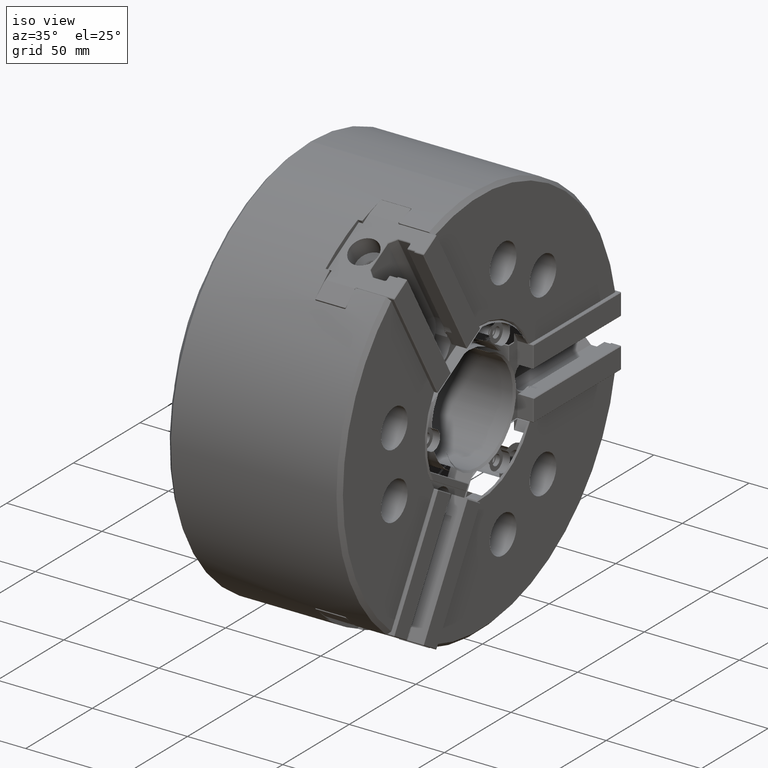
[diagram: clean part render]
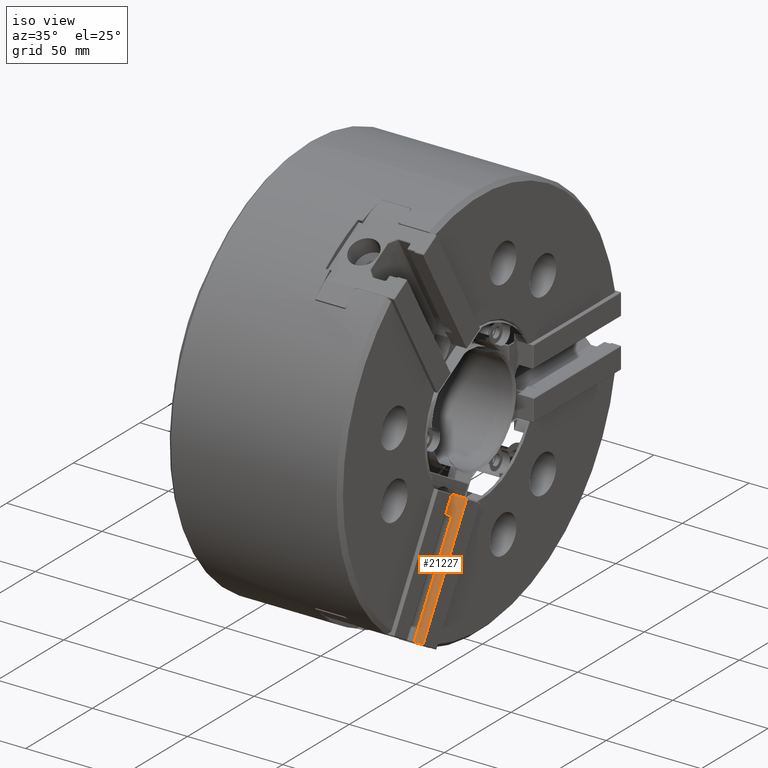
[diagram: same view with one face highlighted and labeled with its STEP entity id]
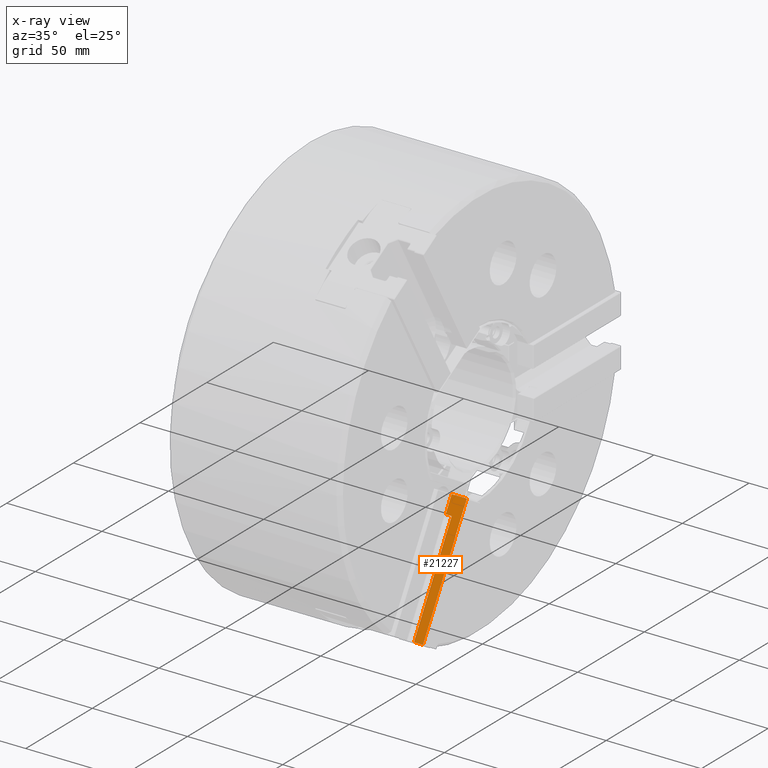
[diagram: x-ray of the same camera — body ghosted, the highlighted face saturated]
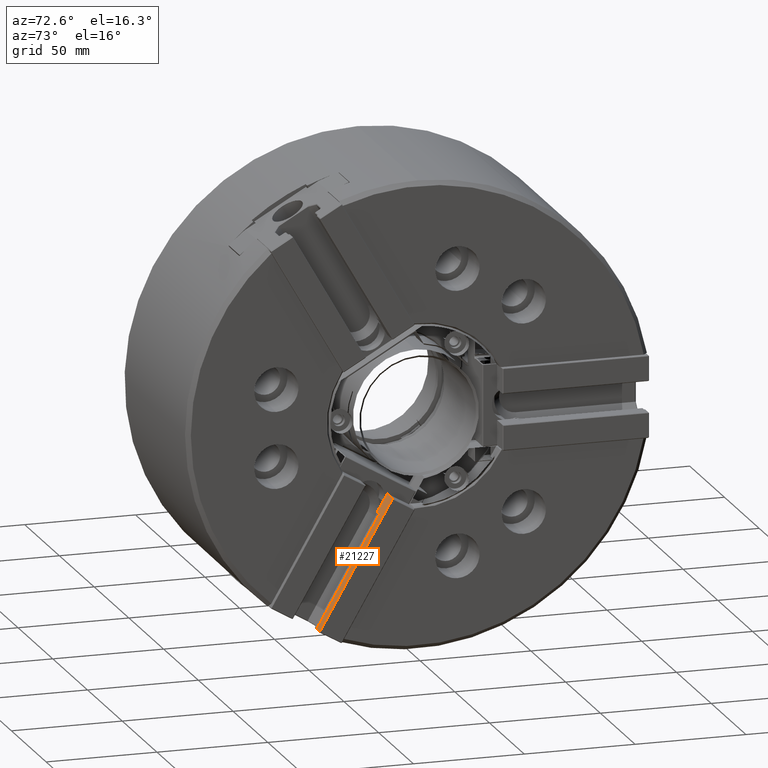
[diagram: same view with one face highlighted and labeled with its STEP entity id]
A machine part, iso view. The second image highlights one B-rep face of the part: STEP entity #21227.
The next image is the same camera in x-ray: the body ghosted, the highlighted face saturated — about 0% of this face is hidden behind the body in this view.
A second angle (auxiliary view) of the same face is appended — the face is thin or edge-on in the first view.
In plain terms, the highlighted planar face has unit normal (-0, 0.866, -0.5).
Its self-contained STEP definition (entity closure, byte-faithful):
#1751=LINE('',#34813,#3849);
#1769=LINE('',#34887,#3867);
#1773=LINE('',#34900,#3871);
#1774=LINE('',#34903,#3872);
#1775=LINE('',#34905,#3873);
#1776=LINE('',#34906,#3874);
#1777=LINE('',#34908,#3875);
#1778=LINE('',#34909,#3876);
#3849=VECTOR('',#27625,1000.);
#3867=VECTOR('',#27689,1000.);
#3871=VECTOR('',#27701,1000.);
#3872=VECTOR('',#27702,1000.);
#3873=VECTOR('',#27703,1000.);
#3874=VECTOR('',#27704,1000.);
#3875=VECTOR('',#27705,1000.);
#3876=VECTOR('',#27706,1000.);
#5125=PLANE('',#23046);
#9310=ORIENTED_EDGE('',*,*,#13695,.T.);
#9311=ORIENTED_EDGE('',*,*,#13696,.T.);
#9312=ORIENTED_EDGE('',*,*,#13697,.T.);
#9313=ORIENTED_EDGE('',*,*,#13689,.T.);
#9314=ORIENTED_EDGE('',*,*,#13698,.T.);
#9315=ORIENTED_EDGE('',*,*,#13699,.T.);
#9316=ORIENTED_EDGE('',*,*,#13655,.F.);
#9317=ORIENTED_EDGE('',*,*,#13700,.F.);
#13655=EDGE_CURVE('',#16084,#16085,#1751,.T.);
#13689=EDGE_CURVE('',#16118,#16117,#1769,.T.);
#13695=EDGE_CURVE('',#16123,#16124,#1773,.T.);
#13696=EDGE_CURVE('',#16124,#16125,#1774,.T.);
#13697=EDGE_CURVE('',#16125,#16118,#1775,.T.);
#13698=EDGE_CURVE('',#16117,#16126,#1776,.T.);
#13699=EDGE_CURVE('',#16126,#16085,#1777,.T.);
#13700=EDGE_CURVE('',#16123,#16084,#1778,.T.);
#16084=VERTEX_POINT('',#34812);
#16085=VERTEX_POINT('',#34814);
#16117=VERTEX_POINT('',#34886);
#16118=VERTEX_POINT('',#34888);
#16123=VERTEX_POINT('',#34901);
#16124=VERTEX_POINT('',#34902);
#16125=VERTEX_POINT('',#34904);
#16126=VERTEX_POINT('',#34907);
#18293=EDGE_LOOP('',(#9310,#9311,#9312,#9313,#9314,#9315,#9316,#9317));
#19731=FACE_BOUND('',#18293,.T.);
#21227=ADVANCED_FACE('',(#19731),#5125,.F.);
#23046=AXIS2_PLACEMENT_3D('',#34899,#27699,#27700);
#27625=DIRECTION('',(-1.,-7.24206233135188E-17,4.26993070010448E-16));
#27689=DIRECTION('',(-3.33576534212196E-16,-0.499999999999999,-0.866025403784439));
#27699=DIRECTION('',(-3.22524454371321E-15,0.866025403784439,-0.499999999999999));
#27700=DIRECTION('',(-1.,-2.6263554411667E-15,1.90150802459074E-15));
#27701=DIRECTION('',(1.,2.6263554411667E-15,-1.90150802459074E-15));
#27702=DIRECTION('',(3.33576534212196E-16,0.499999999999999,0.866025403784439));
#27703=DIRECTION('',(-1.,-4.85450022355615E-16,-2.88394834150105E-16));
#27704=DIRECTION('',(-3.33576534212196E-16,-0.499999999999999,-0.866025403784439));
#27705=DIRECTION('',(-3.33576534212196E-16,-0.499999999999999,-0.866025403784439));
#27706=DIRECTION('',(3.33576534212196E-16,0.499999999999999,0.866025403784439));
#34812=CARTESIAN_POINT('',(-4.22623456790121,-17.0204754411876,-43.4803282331153));
#34813=CARTESIAN_POINT('',(-99.1911851997444,-17.0204754411876,-43.4803282331152));
#34814=CARTESIAN_POINT('',(-7.42623456790121,-17.0204754411876,-43.4803282331153));
#34886=CARTESIAN_POINT('',(-7.42623456790121,-13.7454754411876,-37.8078618383272));
#34887=CARTESIAN_POINT('',(-7.42623456790121,-18.3667666429712,-45.8121729963874));
#34888=CARTESIAN_POINT('',(-7.42623456790121,-12.4917666429712,-35.6363745019203));
#34899=CARTESIAN_POINT('',(0.773765432098755,-74.7809714144646,-143.524441929209));
#34900=CARTESIAN_POINT('',(0.773765432098776,-45.3417666429712,-92.5342435305579));
#34901=CARTESIAN_POINT('',(-4.22623456790123,-45.3417666429712,-92.5342435305579));
#34902=CARTESIAN_POINT('',(0.473765432098767,-45.3417666429712,-92.5342435305579));
#34903=CARTESIAN_POINT('',(0.473765432098747,-74.7809714144646,-143.524441929209));
#34904=CARTESIAN_POINT('',(0.473765432098788,-12.4917666429712,-35.6363745019203));
#34905=CARTESIAN_POINT('',(0.773765432098797,-12.4917666429712,-35.6363745019203));
#34906=CARTESIAN_POINT('',(-7.42623456790121,-18.3667666429712,-45.8121729963874));
#34907=CARTESIAN_POINT('',(-7.42623456790121,-16.4380578447548,-42.4715513648715));
#34908=CARTESIAN_POINT('',(-7.42623456790121,-18.3667666429712,-45.8121729963874));
#34909=CARTESIAN_POINT('',(-4.22623456790125,-74.7809714144646,-143.524441929209));